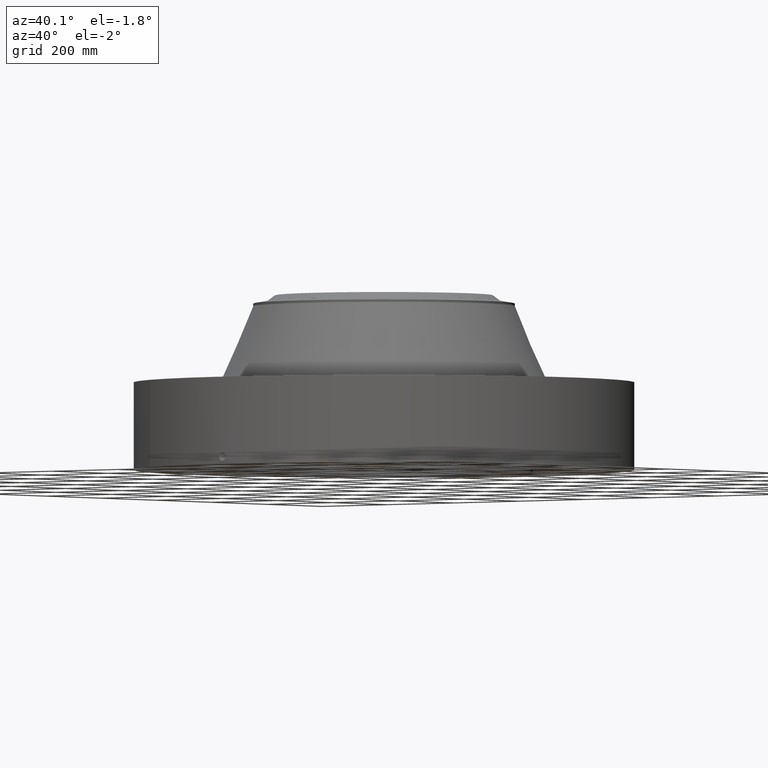
[diagram: clean part render]
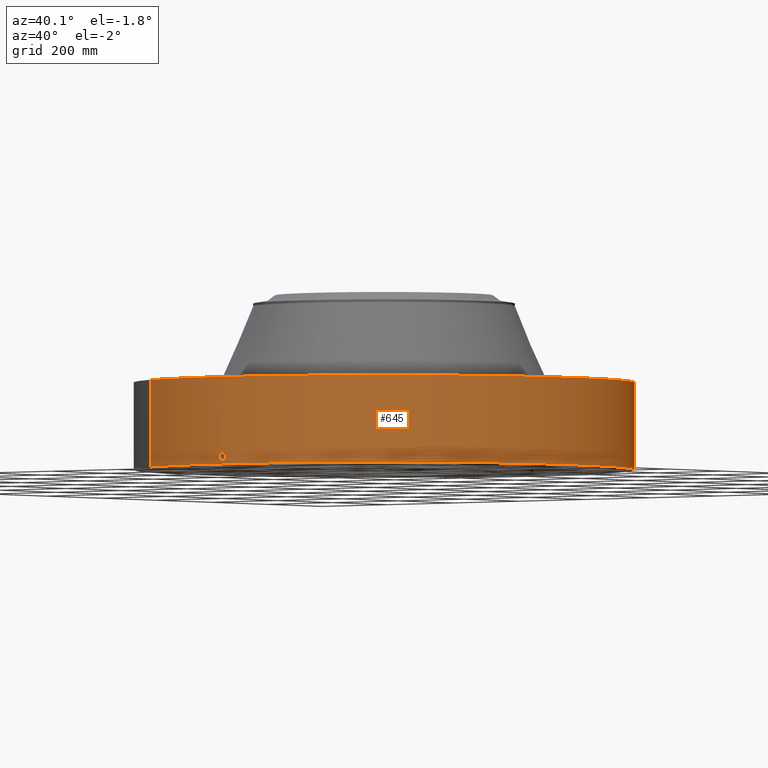
[diagram: same view with one face highlighted and labeled with its STEP entity id]
A machine part, auxiliary view. The second image highlights one B-rep face of the part: STEP entity #645.
In plain terms, the highlighted cylindrical surface (partial cylindrical patch) has radius 584.2 mm, axis along (0, 0, -1).
Its self-contained STEP definition (entity closure, byte-faithful):
#38=AXIS2_PLACEMENT_3D('Cylinder Axis2P3D',#35,#36,#37) ;
#169=AXIS2_PLACEMENT_3D('Circle Axis2P3D',#167,#168,$) ;
#549=AXIS2_PLACEMENT_3D('Circle Axis2P3D',#547,#548,$) ;
#35=CARTESIAN_POINT('Axis2P3D Location',(0.,0.,8.12500000003)) ;
#44=CARTESIAN_POINT('Vertex',(-11.0267873879,-20.1843989236,0.250000000001)) ;
#46=CARTESIAN_POINT('Vertex',(11.0267873879,20.1843989236,0.250000000001)) ;
#49=CARTESIAN_POINT('Line Origine',(-11.0267873879,-20.1843989236,4.25000000002)) ;
#53=CARTESIAN_POINT('Vertex',(-11.0267873879,-20.1843989236,8.25000000003)) ;
#60=CARTESIAN_POINT('Vertex',(11.0267873879,20.1843989236,8.25000000003)) ;
#63=CARTESIAN_POINT('Line Origine',(11.0267873879,20.1843989236,4.25000000002)) ;
#167=CARTESIAN_POINT('Axis2P3D Location',(0.,0.,0.250000000001)) ;
#547=CARTESIAN_POINT('Axis2P3D Location',(0.,0.,8.25000000003)) ;
#559=CARTESIAN_POINT('Control Point',(0.00071575484564,-22.999999989,1.29411846209)) ;
#560=CARTESIAN_POINT('Control Point',(0.0185918965165,-22.9999994327,1.29408238213)) ;
#561=CARTESIAN_POINT('Control Point',(0.036464983184,-22.999977878,1.29268938891)) ;
#562=CARTESIAN_POINT('Control Point',(0.0541307093303,-22.9999363014,1.28995554322)) ;
#563=CARTESIAN_POINT('Vertex',(0.000715520481899,-22.999999989,1.29411851109)) ;
#565=CARTESIAN_POINT('Vertex',(0.0541224153993,-22.9999365698,1.28995684364)) ;
#569=CARTESIAN_POINT('Control Point',(0.054122324017,-22.9999363212,1.28995630979)) ;
#570=CARTESIAN_POINT('Control Point',(0.0949991505716,-22.9998401318,1.28571457418)) ;
#571=CARTESIAN_POINT('Control Point',(0.135288710563,-22.9996321501,1.27406169478)) ;
#572=CARTESIAN_POINT('Control Point',(0.172463870292,-22.9993533869,1.25572326453)) ;
#573=CARTESIAN_POINT('Vertex',(0.172463870292,-22.9993533869,1.25572326453)) ;
#577=CARTESIAN_POINT('Control Point',(0.0313795555231,-22.9999785941,0.53121677103)) ;
#578=CARTESIAN_POINT('Control Point',(0.0968081460712,-22.9998893279,0.539480851186)) ;
#579=CARTESIAN_POINT('Control Point',(0.160203233019,-22.9995701778,0.561265797837)) ;
#580=CARTESIAN_POINT('Control Point',(0.217717225316,-22.99905345,0.59595690525)) ;
#581=CARTESIAN_POINT('Control Point',(0.293728118893,-22.998169949,0.666813922036)) ;
#582=CARTESIAN_POINT('Control Point',(0.342715588587,-22.9974550595,0.755772193553)) ;
#583=CARTESIAN_POINT('Control Point',(0.35661386167,-22.9972386265,0.789941124695)) ;
#584=CARTESIAN_POINT('Control Point',(0.377301798449,-22.9969075912,0.864772748338)) ;
#585=CARTESIAN_POINT('Control Point',(0.379190572292,-22.9968730416,0.941974058715)) ;
#586=CARTESIAN_POINT('Control Point',(0.374855812283,-22.9969462606,0.98246555505)) ;
#587=CARTESIAN_POINT('Control Point',(0.352232338455,-22.9973182844,1.07562343039)) ;
#588=CARTESIAN_POINT('Control Point',(0.302150233295,-22.9980455976,1.15741402834)) ;
#589=CARTESIAN_POINT('Control Point',(0.264857098697,-22.9985334094,1.19868358061)) ;
#590=CARTESIAN_POINT('Control Point',(0.220831593768,-22.9989906948,1.23186356365)) ;
#591=CARTESIAN_POINT('Control Point',(0.172463870292,-22.9993533869,1.25572326453)) ;
#592=CARTESIAN_POINT('Vertex',(0.0313795555232,-22.9999785941,0.53121677103)) ;
#596=CARTESIAN_POINT('Control Point',(0.0313795555232,-22.9999785941,0.53121677103)) ;
#597=CARTESIAN_POINT('Control Point',(0.0209153673712,-22.9999928707,0.530878580119)) ;
#598=CARTESIAN_POINT('Control Point',(0.0104422737798,-23.0000000013,0.530931396883)) ;
#599=CARTESIAN_POINT('Control Point',(-2.72878352544E-006,-23.0000000001,0.531374667806)) ;
#600=CARTESIAN_POINT('Vertex',(-2.72878354761E-006,-23.0000000001,0.531374667806)) ;
#604=CARTESIAN_POINT('Control Point',(-0.192329869975,-22.9991958387,0.587954108467)) ;
#605=CARTESIAN_POINT('Control Point',(-0.148892066596,-22.9995590856,0.562359699364)) ;
#606=CARTESIAN_POINT('Control Point',(-0.101096820754,-22.9998499354,0.543891469112)) ;
#607=CARTESIAN_POINT('Control Point',(-0.0507986276735,-22.9999999941,0.533530374593)) ;
#608=CARTESIAN_POINT('Control Point',(-2.72878352544E-006,-23.0000000001,0.531374667806)) ;
#609=CARTESIAN_POINT('Vertex',(-0.192329869974,-22.9991958387,0.587954108467)) ;
#613=CARTESIAN_POINT('Control Point',(-0.192329869974,-22.9991958387,0.587954108467)) ;
#614=CARTESIAN_POINT('Control Point',(-0.220777048393,-22.9989579503,0.604715745784)) ;
#615=CARTESIAN_POINT('Control Point',(-0.247477094279,-22.998690687,0.624342720701)) ;
#616=CARTESIAN_POINT('Control Point',(-0.27202887661,-22.9984081801,0.646616399488)) ;
#617=CARTESIAN_POINT('Control Point',(-0.342986866647,-22.9975062612,0.725882631308)) ;
#618=CARTESIAN_POINT('Control Point',(-0.384824128619,-22.9967926468,0.825516804697)) ;
#619=CARTESIAN_POINT('Control Point',(-0.396559522909,-22.9965716886,0.899805141949)) ;
#620=CARTESIAN_POINT('Control Point',(-0.386762456491,-22.9967700486,1.01040509807)) ;
#621=CARTESIAN_POINT('Control Point',(-0.340659986317,-22.9974855913,1.10782873029)) ;
#622=CARTESIAN_POINT('Control Point',(-0.321493393499,-22.9977678673,1.13821394099)) ;
#623=CARTESIAN_POINT('Control Point',(-0.260134296087,-22.9985930967,1.21368378945)) ;
#624=CARTESIAN_POINT('Control Point',(-0.177721545094,-22.9994093592,1.26605963272)) ;
#625=CARTESIAN_POINT('Control Point',(-0.119782741529,-22.9998080846,1.28778168559)) ;
#626=CARTESIAN_POINT('Control Point',(-0.0594192683279,-23.0000000669,1.29706754953)) ;
#627=CARTESIAN_POINT('Control Point',(2.58579355501E-005,-23.0000000001,1.29415298429)) ;
#628=CARTESIAN_POINT('Vertex',(2.58579355491E-005,-23.0000000001,1.29415298429)) ;
#632=CARTESIAN_POINT('Control Point',(0.000715520472547,-22.999999989,1.29411851107)) ;
#633=CARTESIAN_POINT('Control Point',(0.000370713952682,-22.9999999997,1.29413607617)) ;
#634=CARTESIAN_POINT('Control Point',(2.58579402173E-005,-23.0000000001,1.29415298429)) ;
#36=DIRECTION('Axis2P3D Direction',(0.,0.,-0.0393700787402)) ;
#37=DIRECTION('Axis2P3D XDirection',(0.0188750212049,0.0345504945626,0.)) ;
#50=DIRECTION('Vector Direction',(0.,0.,-0.0393700787402)) ;
#64=DIRECTION('Vector Direction',(0.,0.,-0.0393700787402)) ;
#168=DIRECTION('Axis2P3D Direction',(0.,0.,-0.0393700787402)) ;
#548=DIRECTION('Axis2P3D Direction',(0.,0.,-0.0393700787402)) ;
#51=VECTOR('Line Direction',#50,0.0393700787402) ;
#65=VECTOR('Line Direction',#64,0.0393700787402) ;
#553=ORIENTED_EDGE('',*,*,#171,.F.) ;
#554=ORIENTED_EDGE('',*,*,#67,.T.) ;
#555=ORIENTED_EDGE('',*,*,#551,.T.) ;
#556=ORIENTED_EDGE('',*,*,#55,.F.) ;
#637=ORIENTED_EDGE('',*,*,#567,.T.) ;
#638=ORIENTED_EDGE('',*,*,#575,.T.) ;
#639=ORIENTED_EDGE('',*,*,#594,.F.) ;
#640=ORIENTED_EDGE('',*,*,#602,.T.) ;
#641=ORIENTED_EDGE('',*,*,#611,.F.) ;
#642=ORIENTED_EDGE('',*,*,#630,.T.) ;
#643=ORIENTED_EDGE('',*,*,#635,.F.) ;
#644=FACE_BOUND('',#636,.T.) ;
#645=ADVANCED_FACE('PartBody',(#557,#644),#39,.T.) ;
#558=B_SPLINE_CURVE_WITH_KNOTS('',3,(#559,#560,#561,#562),.UNSPECIFIED.,.F.,.U.,(4,4),(34.6170795501,36.6002669153),.UNSPECIFIED.) ;
#568=B_SPLINE_CURVE_WITH_KNOTS('',3,(#569,#570,#571,#572),.UNSPECIFIED.,.F.,.U.,(4,4),(0.,4.61778387419),.UNSPECIFIED.) ;
#576=B_SPLINE_CURVE_WITH_KNOTS('',5,(#577,#578,#579,#580,#581,#582,#583,#584,#585,#586,#587,#588,#589,#590,#591),.UNSPECIFIED.,.F.,.U.,(6,3,3,3,6),(0.,11.4609161736,18.0086274864,25.3224681764,35.3359511236),.UNSPECIFIED.) ;
#595=B_SPLINE_CURVE_WITH_KNOTS('',3,(#596,#597,#598,#599),.UNSPECIFIED.,.F.,.U.,(4,4),(0.,1.09162493804),.UNSPECIFIED.) ;
#603=B_SPLINE_CURVE_WITH_KNOTS('',4,(#604,#605,#606,#607,#608),.UNSPECIFIED.,.F.,.U.,(5,5),(0.,7.07835410982),.UNSPECIFIED.) ;
#612=B_SPLINE_CURVE_WITH_KNOTS('',5,(#613,#614,#615,#616,#617,#618,#619,#620,#621,#622,#623,#624,#625,#626,#627),.UNSPECIFIED.,.F.,.U.,(6,3,3,3,6),(0.,5.7944689137,18.6590968982,25.1014237862,36.2129522337),.UNSPECIFIED.) ;
#631=B_SPLINE_CURVE_WITH_KNOTS('',2,(#632,#633,#634),.UNSPECIFIED.,.F.,.U.,(3,3),(1.01142221015,1.03720651099),.UNSPECIFIED.) ;
#170=CIRCLE('generated circle',#169,23.0000000001) ;
#550=CIRCLE('generated circle',#549,23.0000000001) ;
#39=CYLINDRICAL_SURFACE('generated cylinder',#38,23.0000000001) ;
#55=EDGE_CURVE('',#45,#54,#52,.F.) ;
#67=EDGE_CURVE('',#47,#61,#66,.F.) ;
#171=EDGE_CURVE('',#47,#45,#170,.T.) ;
#551=EDGE_CURVE('',#61,#54,#550,.T.) ;
#567=EDGE_CURVE('',#564,#566,#558,.T.) ;
#575=EDGE_CURVE('',#566,#574,#568,.T.) ;
#594=EDGE_CURVE('',#593,#574,#576,.T.) ;
#602=EDGE_CURVE('',#593,#601,#595,.T.) ;
#611=EDGE_CURVE('',#610,#601,#603,.T.) ;
#630=EDGE_CURVE('',#610,#629,#612,.T.) ;
#635=EDGE_CURVE('',#564,#629,#631,.T.) ;
#552=EDGE_LOOP('',(#553,#554,#555,#556)) ;
#636=EDGE_LOOP('',(#637,#638,#639,#640,#641,#642,#643)) ;
#557=FACE_OUTER_BOUND('',#552,.T.) ;
#52=LINE('Line',#49,#51) ;
#66=LINE('Line',#63,#65) ;
#45=VERTEX_POINT('',#44) ;
#47=VERTEX_POINT('',#46) ;
#54=VERTEX_POINT('',#53) ;
#61=VERTEX_POINT('',#60) ;
#564=VERTEX_POINT('',#563) ;
#566=VERTEX_POINT('',#565) ;
#574=VERTEX_POINT('',#573) ;
#593=VERTEX_POINT('',#592) ;
#601=VERTEX_POINT('',#600) ;
#610=VERTEX_POINT('',#609) ;
#629=VERTEX_POINT('',#628) ;